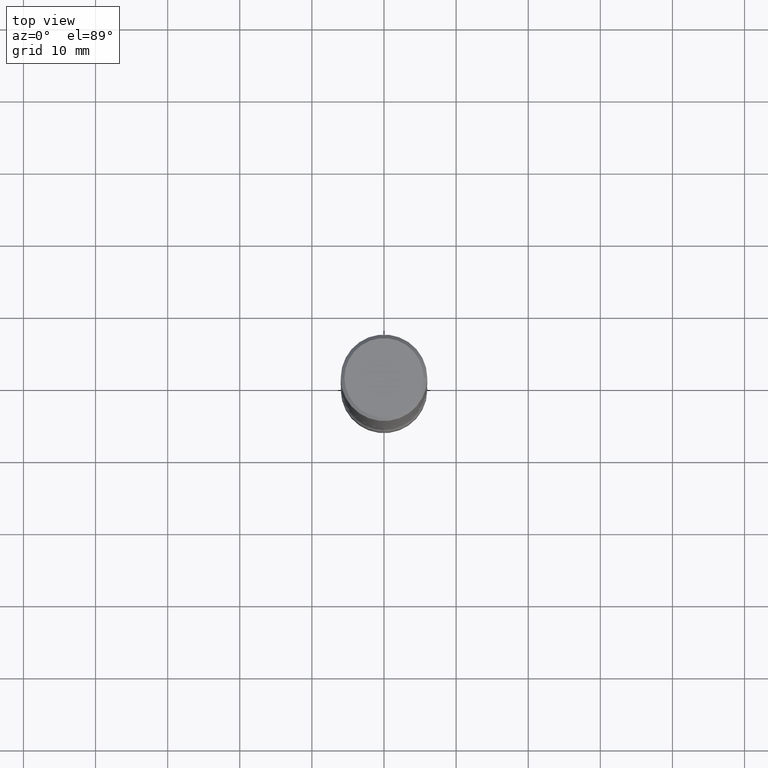
[diagram: clean part render]
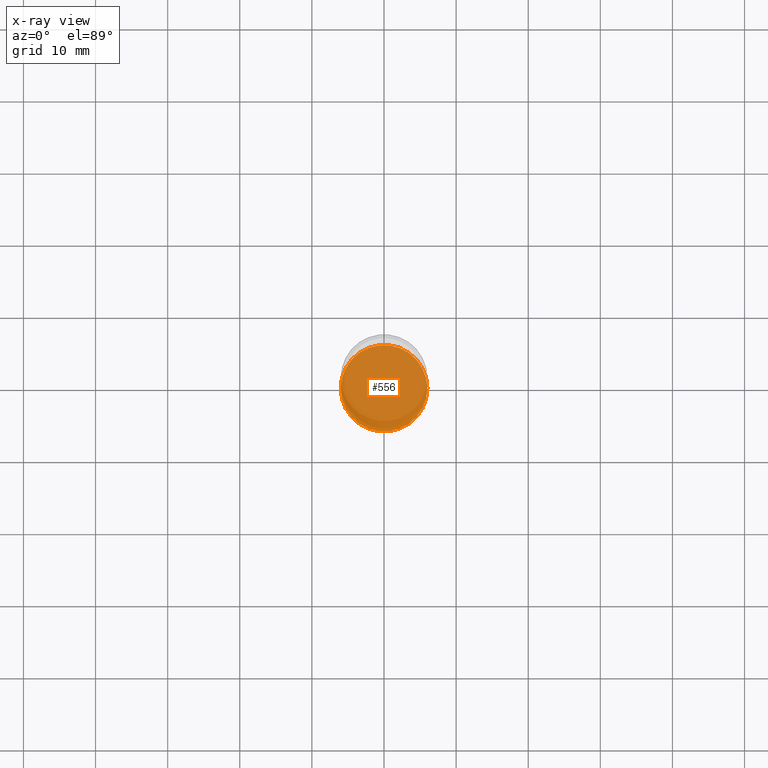
[diagram: x-ray — body ghosted, one internal face saturated and labeled with its STEP entity id]
A machine part, top view, then the same camera in x-ray: the body is ghosted and one INTERNAL B-rep face — a face not visible from any outside direction — is saturated and labeled: STEP entity #556.
In plain terms, the highlighted planar face has unit normal (0, -0, -1).
Its self-contained STEP definition (entity closure, byte-faithful):
#19 = CARTESIAN_POINT ( 'NONE',  ( 0.2362000000000004096, -1.333326893677419946E-14, -3.346399999999999597 ) ) ;
#58 = CARTESIAN_POINT ( 'NONE',  ( 1.358887160832887654E-28, -3.943117431730549939E-15, -3.346400000000000041 ) ) ;
#65 = DIRECTION ( 'NONE',  ( 2.438088387897960049E-29, -3.491481338843145188E-15, -1.000000000000000000 ) ) ;
#93 = VERTEX_POINT ( 'NONE', #19 ) ;
#152 = FACE_OUTER_BOUND ( 'NONE', #511, .T. ) ;
#159 = VERTEX_POINT ( 'NONE', #256 ) ;
#160 = CARTESIAN_POINT ( 'NONE',  ( 8.183516813017940998E-29, -1.168389315230470136E-14, -3.346399999999999597 ) ) ;
#173 = DIRECTION ( 'NONE',  ( 1.000000000000000000, -6.982962677686268288E-15, 0.000000000000000000 ) ) ;
#211 = DIRECTION ( 'NONE',  ( -2.445468806185136597E-29, 3.491481338843145583E-15, 1.000000000000000000 ) ) ;
#256 = CARTESIAN_POINT ( 'NONE',  ( -0.2362000000000004096, -1.083045367674103577E-14, -3.346399999999999597 ) ) ;
#257 = EDGE_CURVE ( 'NONE', #159, #93, #408, .T. ) ;
#262 = AXIS2_PLACEMENT_3D ( 'NONE', #426, #211, #173 ) ;
#268 = AXIS2_PLACEMENT_3D ( 'NONE', #58, #65, #399 ) ;
#270 = PLANE ( 'NONE',  #268 ) ;
#280 = AXIS2_PLACEMENT_3D ( 'NONE', #160, #554, #510 ) ;
#325 = ORIENTED_EDGE ( 'NONE', *, *, #495, .T. ) ;
#399 = DIRECTION ( 'NONE',  ( -1.000000000000000000, 6.982962677686265922E-15, -4.876176775795935793E-29 ) ) ;
#408 = CIRCLE ( 'NONE', #280, 0.2362000000000004096 ) ;
#426 = CARTESIAN_POINT ( 'NONE',  ( 8.183516813017940998E-29, -1.168389315230470136E-14, -3.346399999999999597 ) ) ;
#494 = ORIENTED_EDGE ( 'NONE', *, *, #257, .T. ) ;
#495 = EDGE_CURVE ( 'NONE', #93, #159, #515, .T. ) ;
#510 = DIRECTION ( 'NONE',  ( 1.000000000000000000, -6.982962677686268288E-15, 0.000000000000000000 ) ) ;
#511 = EDGE_LOOP ( 'NONE', ( #325, #494 ) ) ;
#515 = CIRCLE ( 'NONE', #262, 0.2362000000000004096 ) ;
#554 = DIRECTION ( 'NONE',  ( -2.445468806185136597E-29, 3.491481338843145583E-15, 1.000000000000000000 ) ) ;
#556 = ADVANCED_FACE ( 'NONE', ( #152 ), #270, .F. ) ;